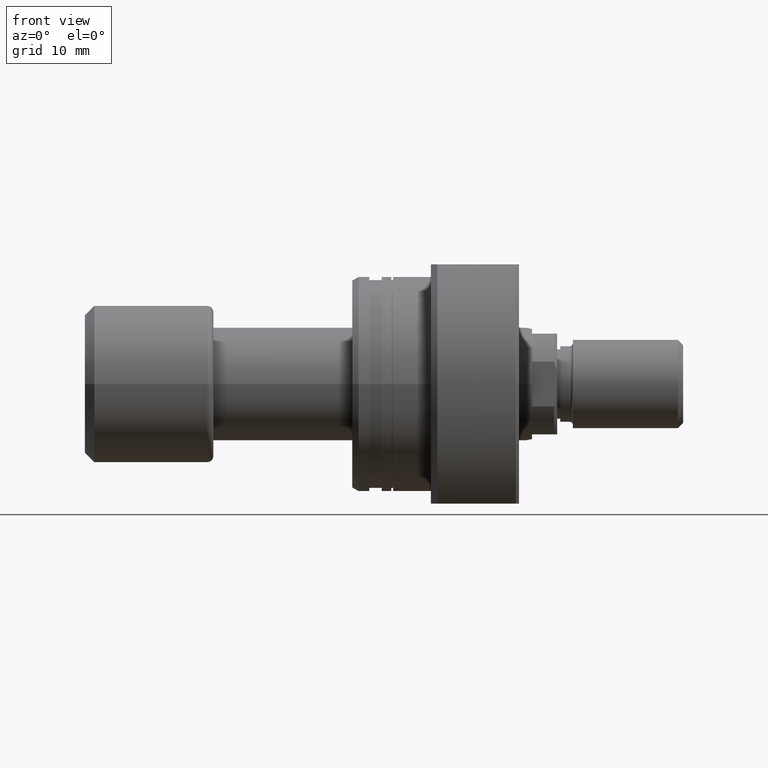
[diagram: clean part render]
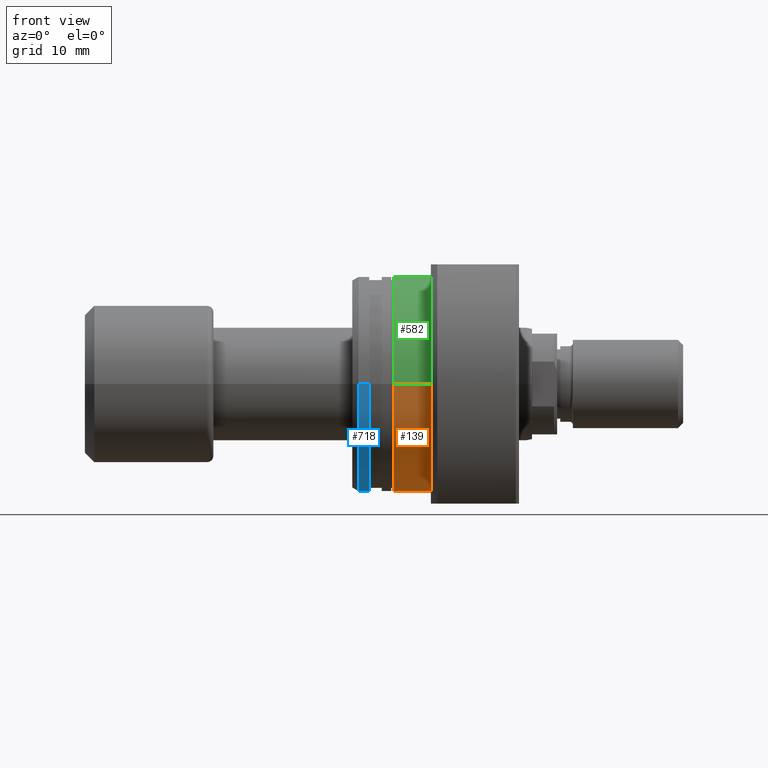
[diagram: same view with three faces highlighted in distinct colors, each labeled with its STEP entity id]
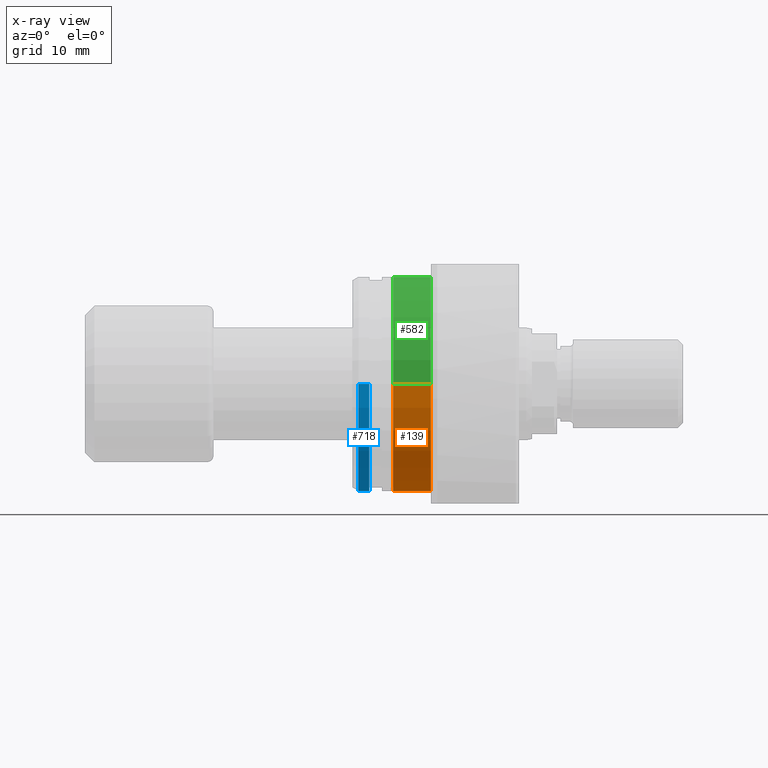
[diagram: x-ray of the same camera — body ghosted, the three highlighted faces saturated]
A machine part, front view with three faces highlighted in distinct colors.
The next image is the same camera in x-ray (body ghosted, the three faces saturated) — at least one of them is partly hidden behind the body in this view.
Their STEP definitions:

[orange] entity #139 — the highlighted cylindrical surface (partial cylindrical patch) has radius 17 mm, axis along (1, 0, 0).
#35 = AXIS2_PLACEMENT_3D ( 'NONE', #3198, #2650, #1230 ) ;
#84 = FACE_OUTER_BOUND ( 'NONE', #3371, .T. ) ;
#139 = ADVANCED_FACE ( 'NONE', ( #84 ), #3441, .T. ) ;
#219 = AXIS2_PLACEMENT_3D ( 'NONE', #1334, #1053, #3329 ) ;
#267 = ORIENTED_EDGE ( 'NONE', *, *, #1988, .T. ) ;
#381 = EDGE_CURVE ( 'NONE', #1481, #761, #2108, .T. ) ;
#419 = AXIS2_PLACEMENT_3D ( 'NONE', #3139, #2647, #2842 ) ;
#500 = EDGE_CURVE ( 'NONE', #761, #3414, #3263, .T. ) ;
#592 = CIRCLE ( 'NONE', #419, 16.99999999999999645 ) ;
#685 = ORIENTED_EDGE ( 'NONE', *, *, #871, .T. ) ;
#696 = CARTESIAN_POINT ( 'NONE',  ( 26.50000000000000711, -16.99999999999999645, 2.081899558550499885E-15 ) ) ;
#761 = VERTEX_POINT ( 'NONE', #2120 ) ;
#871 = EDGE_CURVE ( 'NONE', #2593, #3414, #3362, .T. ) ;
#1053 = DIRECTION ( 'NONE',  ( 1.000000000000000000, 9.242617352055502386E-18, -0.000000000000000000 ) ) ;
#1230 = DIRECTION ( 'NONE',  ( 0.000000000000000000, 1.000000000000000000, 0.000000000000000000 ) ) ;
#1334 = CARTESIAN_POINT ( 'NONE',  ( 12.50000000000000178, 1.155327169006937960E-16, 0.000000000000000000 ) ) ;
#1481 = VERTEX_POINT ( 'NONE', #2309 ) ;
#1646 = CARTESIAN_POINT ( 'NONE',  ( 26.50000000000000711, 16.99999999999999645, 0.000000000000000000 ) ) ;
#1781 = VECTOR ( 'NONE', #2217, 1000.000000000000000 ) ;
#1787 = ORIENTED_EDGE ( 'NONE', *, *, #500, .F. ) ;
#1988 = EDGE_CURVE ( 'NONE', #1481, #2593, #592, .T. ) ;
#2076 = VECTOR ( 'NONE', #3240, 1000.000000000000000 ) ;
#2108 = LINE ( 'NONE', #696, #2076 ) ;
#2120 = CARTESIAN_POINT ( 'NONE',  ( 12.50000000000000178, -16.99999999999999645, 2.081899558550499885E-15 ) ) ;
#2217 = DIRECTION ( 'NONE',  ( 1.000000000000000000, 9.242617352055502386E-18, -0.000000000000000000 ) ) ;
#2309 = CARTESIAN_POINT ( 'NONE',  ( 6.499999999999783284, -16.99999999999999645, 2.081899558550499885E-15 ) ) ;
#2593 = VERTEX_POINT ( 'NONE', #3606 ) ;
#2647 = DIRECTION ( 'NONE',  ( 1.000000000000000000, 9.242617352055502386E-18, -0.000000000000000000 ) ) ;
#2650 = DIRECTION ( 'NONE',  ( 1.000000000000000000, 9.242617352055502386E-18, -0.000000000000000000 ) ) ;
#2842 = DIRECTION ( 'NONE',  ( 0.000000000000000000, 1.000000000000000000, 0.000000000000000000 ) ) ;
#2896 = CARTESIAN_POINT ( 'NONE',  ( 12.50000000000000178, 16.99999999999999645, 0.000000000000000000 ) ) ;
#3139 = CARTESIAN_POINT ( 'NONE',  ( 6.499999999999783284, 6.007701278835876331E-17, 0.000000000000000000 ) ) ;
#3198 = CARTESIAN_POINT ( 'NONE',  ( 26.50000000000000711, 2.449293598294708880E-16, 0.000000000000000000 ) ) ;
#3240 = DIRECTION ( 'NONE',  ( 1.000000000000000000, 9.242617352055502386E-18, -0.000000000000000000 ) ) ;
#3263 = CIRCLE ( 'NONE', #219, 16.99999999999999645 ) ;
#3329 = DIRECTION ( 'NONE',  ( 0.000000000000000000, 1.000000000000000000, 0.000000000000000000 ) ) ;
#3362 = LINE ( 'NONE', #1646, #1781 ) ;
#3371 = EDGE_LOOP ( 'NONE', ( #3468, #267, #685, #1787 ) ) ;
#3414 = VERTEX_POINT ( 'NONE', #2896 ) ;
#3441 = CYLINDRICAL_SURFACE ( 'NONE', #35, 16.99999999999999645 ) ;
#3468 = ORIENTED_EDGE ( 'NONE', *, *, #381, .F. ) ;
#3606 = CARTESIAN_POINT ( 'NONE',  ( 6.499999999999783284, 16.99999999999999645, 0.000000000000000000 ) ) ;

[blue] entity #718 — the highlighted cylindrical surface (partial cylindrical patch) has radius 17 mm, axis along (1, 0, 0).
#62 = DIRECTION ( 'NONE',  ( 1.000000000000000000, 9.242617352055502386E-18, -0.000000000000000000 ) ) ;
#83 = VERTEX_POINT ( 'NONE', #1083 ) ;
#100 = AXIS2_PLACEMENT_3D ( 'NONE', #1865, #1578, #2163 ) ;
#163 = CARTESIAN_POINT ( 'NONE',  ( 0.9999999999997856159, 16.99999999999999645, 0.000000000000000000 ) ) ;
#173 = CIRCLE ( 'NONE', #2740, 16.99999999999999645 ) ;
#272 = VERTEX_POINT ( 'NONE', #1845 ) ;
#297 = AXIS2_PLACEMENT_3D ( 'NONE', #2404, #357, #2154 ) ;
#354 = EDGE_LOOP ( 'NONE', ( #1015, #1685, #1383, #912 ) ) ;
#357 = DIRECTION ( 'NONE',  ( 1.000000000000000000, 9.242617352055502386E-18, -0.000000000000000000 ) ) ;
#519 = CARTESIAN_POINT ( 'NONE',  ( 2.699999999999786127, 16.99999999999999645, 0.000000000000000000 ) ) ;
#580 = EDGE_CURVE ( 'NONE', #272, #83, #901, .T. ) ;
#602 = CARTESIAN_POINT ( 'NONE',  ( 26.50000000000000711, -16.99999999999999645, 2.081899558550499885E-15 ) ) ;
#603 = DIRECTION ( 'NONE',  ( -1.275531967630005461E-17, 1.000000000000000000, 0.000000000000000000 ) ) ;
#718 = ADVANCED_FACE ( 'NONE', ( #2645 ), #1264, .T. ) ;
#889 = CIRCLE ( 'NONE', #297, 16.99999999999999645 ) ;
#901 = LINE ( 'NONE', #602, #2731 ) ;
#912 = ORIENTED_EDGE ( 'NONE', *, *, #2421, .F. ) ;
#1015 = ORIENTED_EDGE ( 'NONE', *, *, #580, .F. ) ;
#1083 = CARTESIAN_POINT ( 'NONE',  ( 2.699999999999786127, -16.99999999999999645, 2.081899558550499885E-15 ) ) ;
#1167 = VERTEX_POINT ( 'NONE', #163 ) ;
#1264 = CYLINDRICAL_SURFACE ( 'NONE', #100, 16.99999999999999645 ) ;
#1383 = ORIENTED_EDGE ( 'NONE', *, *, #1847, .T. ) ;
#1547 = VECTOR ( 'NONE', #3405, 1000.000000000000000 ) ;
#1578 = DIRECTION ( 'NONE',  ( 1.000000000000000000, 9.242617352055502386E-18, -0.000000000000000000 ) ) ;
#1685 = ORIENTED_EDGE ( 'NONE', *, *, #1914, .T. ) ;
#1845 = CARTESIAN_POINT ( 'NONE',  ( 0.9999999999997859490, -16.99999999999999645, 2.081899558550499885E-15 ) ) ;
#1847 = EDGE_CURVE ( 'NONE', #1167, #2611, #1951, .T. ) ;
#1865 = CARTESIAN_POINT ( 'NONE',  ( 26.50000000000000711, 2.449293598294708880E-16, 0.000000000000000000 ) ) ;
#1914 = EDGE_CURVE ( 'NONE', #272, #1167, #173, .T. ) ;
#1951 = LINE ( 'NONE', #2272, #1547 ) ;
#2154 = DIRECTION ( 'NONE',  ( 0.000000000000000000, 1.000000000000000000, 0.000000000000000000 ) ) ;
#2163 = DIRECTION ( 'NONE',  ( 0.000000000000000000, 1.000000000000000000, 0.000000000000000000 ) ) ;
#2272 = CARTESIAN_POINT ( 'NONE',  ( 26.50000000000000711, 16.99999999999999645, 0.000000000000000000 ) ) ;
#2404 = CARTESIAN_POINT ( 'NONE',  ( 2.699999999999786127, 2.495506685054785763E-17, 0.000000000000000000 ) ) ;
#2421 = EDGE_CURVE ( 'NONE', #83, #2611, #889, .T. ) ;
#2601 = DIRECTION ( 'NONE',  ( 1.000000000000000000, 9.242617352055502386E-18, -0.000000000000000000 ) ) ;
#2611 = VERTEX_POINT ( 'NONE', #519 ) ;
#2645 = FACE_OUTER_BOUND ( 'NONE', #354, .T. ) ;
#2731 = VECTOR ( 'NONE', #2601, 1000.000000000000000 ) ;
#2740 = AXIS2_PLACEMENT_3D ( 'NONE', #3179, #62, #603 ) ;
#3179 = CARTESIAN_POINT ( 'NONE',  ( 0.9999999999997857270, 9.242617352053524071E-18, 0.000000000000000000 ) ) ;
#3405 = DIRECTION ( 'NONE',  ( 1.000000000000000000, 9.242617352055502386E-18, -0.000000000000000000 ) ) ;

[green] entity #582 — the highlighted cylindrical surface (partial cylindrical patch) has radius 17 mm, axis along (1, 0, 0).
#2 = FACE_OUTER_BOUND ( 'NONE', #864, .T. ) ;
#38 = AXIS2_PLACEMENT_3D ( 'NONE', #1782, #2583, #341 ) ;
#211 = ORIENTED_EDGE ( 'NONE', *, *, #1634, .F. ) ;
#303 = CIRCLE ( 'NONE', #1145, 16.99999999999999645 ) ;
#341 = DIRECTION ( 'NONE',  ( 0.000000000000000000, 1.000000000000000000, 0.000000000000000000 ) ) ;
#381 = EDGE_CURVE ( 'NONE', #1481, #761, #2108, .T. ) ;
#582 = ADVANCED_FACE ( 'NONE', ( #2 ), #2005, .T. ) ;
#696 = CARTESIAN_POINT ( 'NONE',  ( 26.50000000000000711, -16.99999999999999645, 2.081899558550499885E-15 ) ) ;
#761 = VERTEX_POINT ( 'NONE', #2120 ) ;
#857 = DIRECTION ( 'NONE',  ( 0.000000000000000000, 1.000000000000000000, 0.000000000000000000 ) ) ;
#864 = EDGE_LOOP ( 'NONE', ( #1947, #2008, #211, #3055 ) ) ;
#871 = EDGE_CURVE ( 'NONE', #2593, #3414, #3362, .T. ) ;
#1145 = AXIS2_PLACEMENT_3D ( 'NONE', #1432, #2585, #857 ) ;
#1432 = CARTESIAN_POINT ( 'NONE',  ( 6.499999999999783284, 6.007701278835876331E-17, 0.000000000000000000 ) ) ;
#1481 = VERTEX_POINT ( 'NONE', #2309 ) ;
#1603 = AXIS2_PLACEMENT_3D ( 'NONE', #2739, #1882, #2955 ) ;
#1634 = EDGE_CURVE ( 'NONE', #3414, #761, #2794, .T. ) ;
#1646 = CARTESIAN_POINT ( 'NONE',  ( 26.50000000000000711, 16.99999999999999645, 0.000000000000000000 ) ) ;
#1781 = VECTOR ( 'NONE', #2217, 1000.000000000000000 ) ;
#1782 = CARTESIAN_POINT ( 'NONE',  ( 26.50000000000000711, 2.449293598294708880E-16, 0.000000000000000000 ) ) ;
#1882 = DIRECTION ( 'NONE',  ( 1.000000000000000000, 9.242617352055502386E-18, -0.000000000000000000 ) ) ;
#1947 = ORIENTED_EDGE ( 'NONE', *, *, #3278, .T. ) ;
#2005 = CYLINDRICAL_SURFACE ( 'NONE', #38, 16.99999999999999645 ) ;
#2008 = ORIENTED_EDGE ( 'NONE', *, *, #381, .T. ) ;
#2076 = VECTOR ( 'NONE', #3240, 1000.000000000000000 ) ;
#2108 = LINE ( 'NONE', #696, #2076 ) ;
#2120 = CARTESIAN_POINT ( 'NONE',  ( 12.50000000000000178, -16.99999999999999645, 2.081899558550499885E-15 ) ) ;
#2217 = DIRECTION ( 'NONE',  ( 1.000000000000000000, 9.242617352055502386E-18, -0.000000000000000000 ) ) ;
#2309 = CARTESIAN_POINT ( 'NONE',  ( 6.499999999999783284, -16.99999999999999645, 2.081899558550499885E-15 ) ) ;
#2583 = DIRECTION ( 'NONE',  ( 1.000000000000000000, 9.242617352055502386E-18, -0.000000000000000000 ) ) ;
#2585 = DIRECTION ( 'NONE',  ( 1.000000000000000000, 9.242617352055502386E-18, -0.000000000000000000 ) ) ;
#2593 = VERTEX_POINT ( 'NONE', #3606 ) ;
#2739 = CARTESIAN_POINT ( 'NONE',  ( 12.50000000000000178, 1.155327169006937960E-16, 0.000000000000000000 ) ) ;
#2794 = CIRCLE ( 'NONE', #1603, 16.99999999999999645 ) ;
#2896 = CARTESIAN_POINT ( 'NONE',  ( 12.50000000000000178, 16.99999999999999645, 0.000000000000000000 ) ) ;
#2955 = DIRECTION ( 'NONE',  ( 0.000000000000000000, 1.000000000000000000, 0.000000000000000000 ) ) ;
#3055 = ORIENTED_EDGE ( 'NONE', *, *, #871, .F. ) ;
#3240 = DIRECTION ( 'NONE',  ( 1.000000000000000000, 9.242617352055502386E-18, -0.000000000000000000 ) ) ;
#3278 = EDGE_CURVE ( 'NONE', #2593, #1481, #303, .T. ) ;
#3362 = LINE ( 'NONE', #1646, #1781 ) ;
#3414 = VERTEX_POINT ( 'NONE', #2896 ) ;
#3606 = CARTESIAN_POINT ( 'NONE',  ( 6.499999999999783284, 16.99999999999999645, 0.000000000000000000 ) ) ;